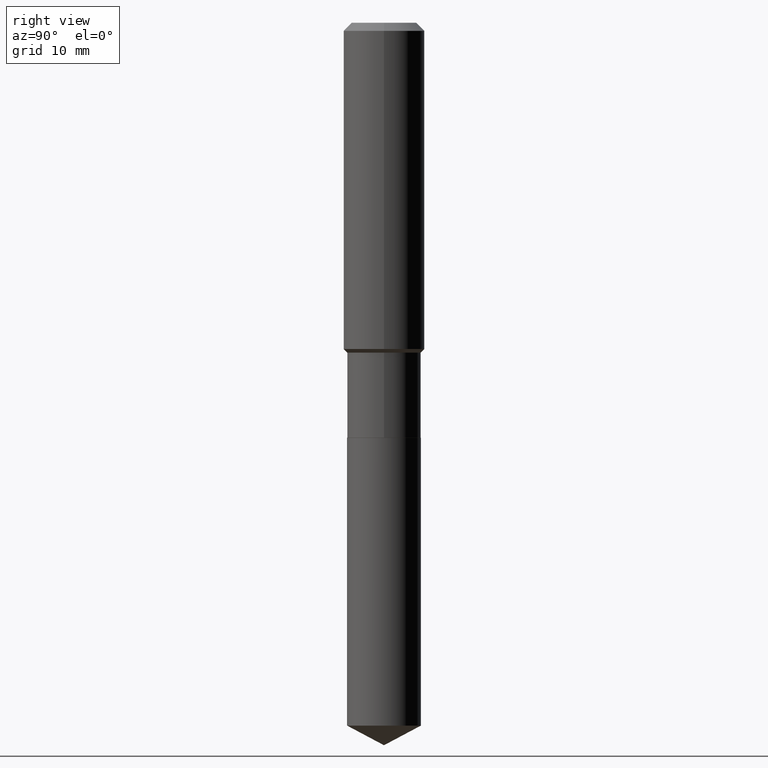
[diagram: clean part render]
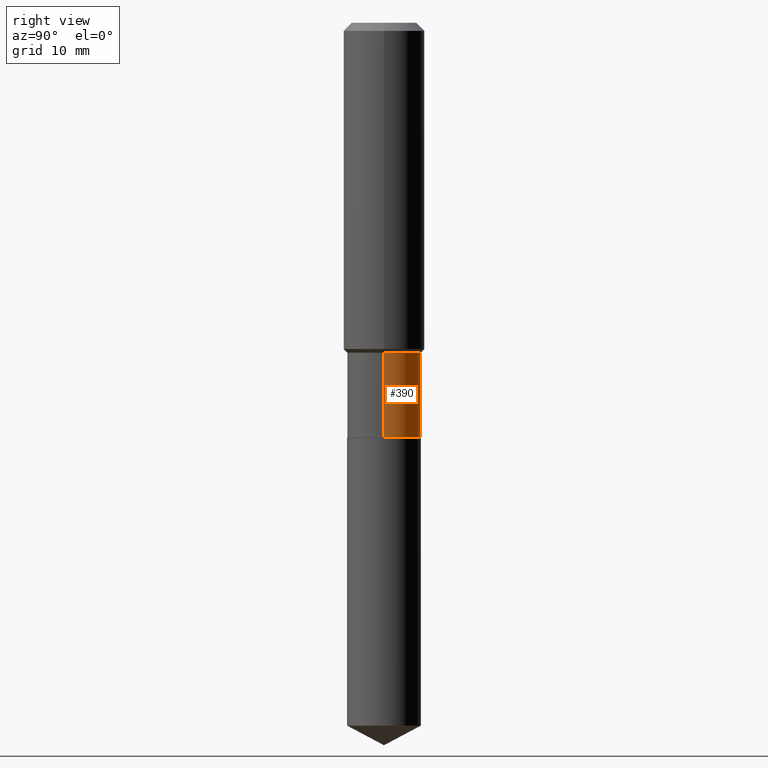
[diagram: same view with one face highlighted and labeled with its STEP entity id]
A machine part, right view. The second image highlights one B-rep face of the part: STEP entity #390.
In plain terms, the highlighted cylindrical surface (partial cylindrical patch) has radius 4.5504 mm, axis along (-0, 0, 1).
Its self-contained STEP definition (entity closure, byte-faithful):
#11 = CARTESIAN_POINT ( 'NONE',  ( 3.912260996134981658E-29, -5.585671845881263700E-15, -1.599799999999999889 ) ) ;
#17 = DIRECTION ( 'NONE',  ( -2.445468806185136597E-29, 3.491481338843145583E-15, 1.000000000000000000 ) ) ;
#18 = ORIENTED_EDGE ( 'NONE', *, *, #219, .T. ) ;
#25 = CIRCLE ( 'NONE', #56, 0.1791500000000000592 ) ;
#29 = EDGE_CURVE ( 'NONE', #489, #282, #63, .T. ) ;
#32 = VECTOR ( 'NONE', #246, 39.37007874015748143 ) ;
#56 = AXIS2_PLACEMENT_3D ( 'NONE', #110, #153, #114 ) ;
#63 = CIRCLE ( 'NONE', #168, 0.1791499999999999759 ) ;
#68 = CARTESIAN_POINT ( 'NONE',  ( 0.1791500000000000314, -1.250997763707495014E-15, 8.735670693838419573E-30 ) ) ;
#71 = VECTOR ( 'NONE', #380, 39.37007874015748143 ) ;
#82 = DIRECTION ( 'NONE',  ( 1.000000000000000000, -6.982962677686269866E-15, 0.000000000000000000 ) ) ;
#110 = CARTESIAN_POINT ( 'NONE',  ( 4.918571409880165014E-29, -7.022416416815218724E-15, -2.011299999999999866 ) ) ;
#114 = DIRECTION ( 'NONE',  ( 1.000000000000000000, -6.982962677686265922E-15, 0.000000000000000000 ) ) ;
#132 = VERTEX_POINT ( 'NONE', #419 ) ;
#136 = CARTESIAN_POINT ( 'NONE',  ( 0.1791499999999999759, -6.836669609588758911E-15, -1.599799999999999889 ) ) ;
#138 = CARTESIAN_POINT ( 'NONE',  ( -0.1791499999999999759, -5.031106820234021505E-15, -1.599799999999999889 ) ) ;
#152 = LINE ( 'NONE', #68, #71 ) ;
#153 = DIRECTION ( 'NONE',  ( -2.445468806185136597E-29, 3.491481338843145583E-15, 1.000000000000000000 ) ) ;
#161 = CYLINDRICAL_SURFACE ( 'NONE', #472, 0.1791500000000000314 ) ;
#165 = DIRECTION ( 'NONE',  ( -2.445468806185136597E-29, 3.491481338843145583E-15, 1.000000000000000000 ) ) ;
#168 = AXIS2_PLACEMENT_3D ( 'NONE', #11, #165, #82 ) ;
#172 = CARTESIAN_POINT ( 'NONE',  ( 0.000000000000000000, 0.000000000000000000, 0.000000000000000000 ) ) ;
#219 = EDGE_CURVE ( 'NONE', #418, #132, #25, .T. ) ;
#232 = ORIENTED_EDGE ( 'NONE', *, *, #242, .T. ) ;
#242 = EDGE_CURVE ( 'NONE', #132, #282, #244, .T. ) ;
#244 = LINE ( 'NONE', #426, #32 ) ;
#246 = DIRECTION ( 'NONE',  ( -2.445468806185136877E-29, 3.491481338843145188E-15, 1.000000000000000000 ) ) ;
#267 = ORIENTED_EDGE ( 'NONE', *, *, #29, .F. ) ;
#282 = VERTEX_POINT ( 'NONE', #138 ) ;
#339 = EDGE_CURVE ( 'NONE', #418, #489, #152, .T. ) ;
#359 = ORIENTED_EDGE ( 'NONE', *, *, #339, .F. ) ;
#380 = DIRECTION ( 'NONE',  ( -2.445468806185136877E-29, 3.491481338843145188E-15, 1.000000000000000000 ) ) ;
#390 = ADVANCED_FACE ( 'NONE', ( #435 ), #161, .T. ) ;
#396 = EDGE_LOOP ( 'NONE', ( #18, #232, #267, #359 ) ) ;
#397 = DIRECTION ( 'NONE',  ( 1.000000000000000000, -6.982962677686267499E-15, 4.876176775795935232E-29 ) ) ;
#418 = VERTEX_POINT ( 'NONE', #473 ) ;
#419 = CARTESIAN_POINT ( 'NONE',  ( -0.1791500000000000592, -5.031106820234021505E-15, -2.011299999999999866 ) ) ;
#426 = CARTESIAN_POINT ( 'NONE',  ( -0.1791500000000000314, 1.272937311114219706E-15, -8.812272214191663486E-30 ) ) ;
#435 = FACE_OUTER_BOUND ( 'NONE', #396, .T. ) ;
#472 = AXIS2_PLACEMENT_3D ( 'NONE', #172, #17, #397 ) ;
#473 = CARTESIAN_POINT ( 'NONE',  ( 0.1791500000000000592, -8.273414180522713146E-15, -2.011299999999999866 ) ) ;
#489 = VERTEX_POINT ( 'NONE', #136 ) ;